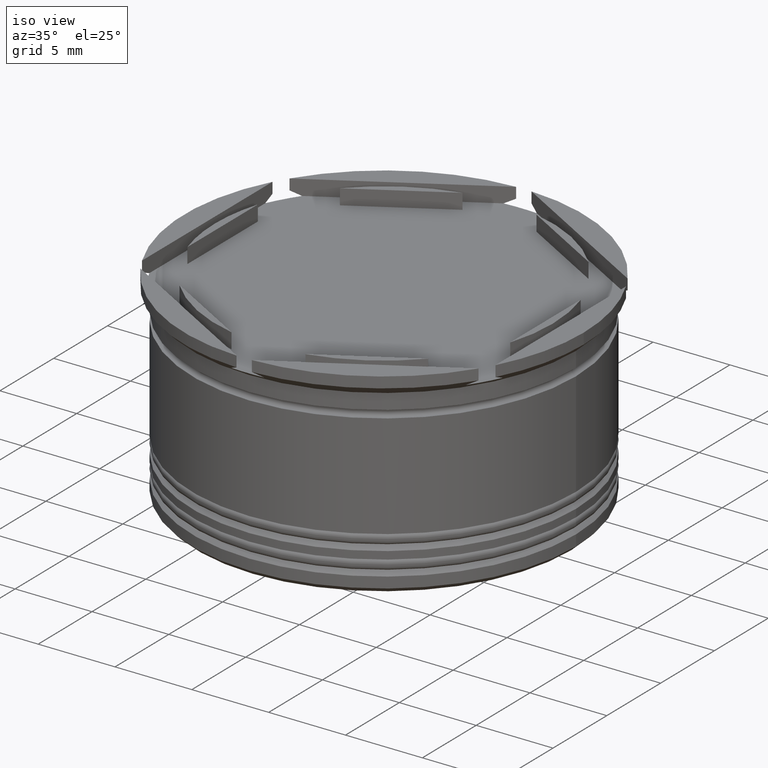
[diagram: clean part render]
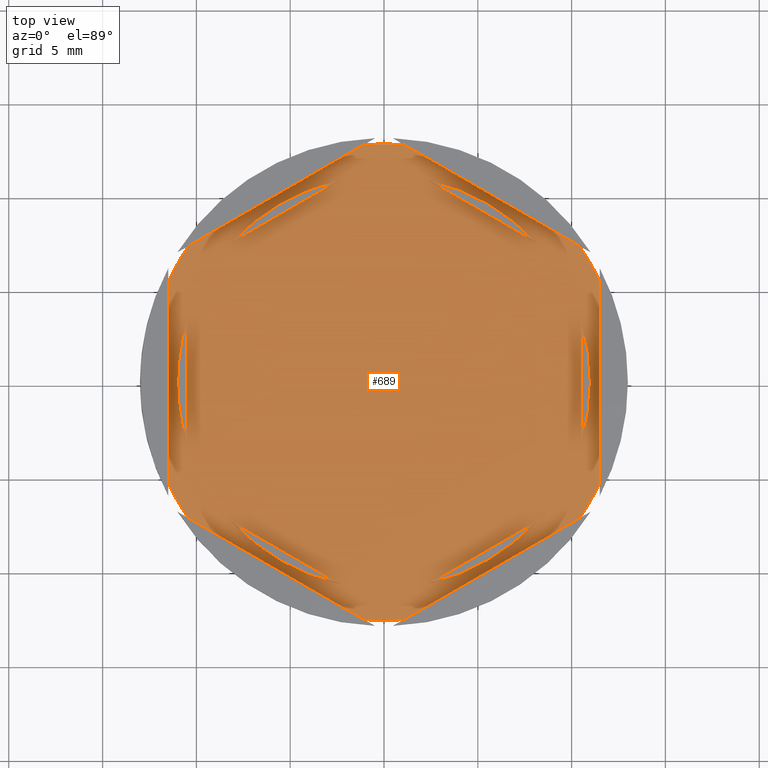
[diagram: tour spotlight — one face highlighted and labeled with its STEP entity id]
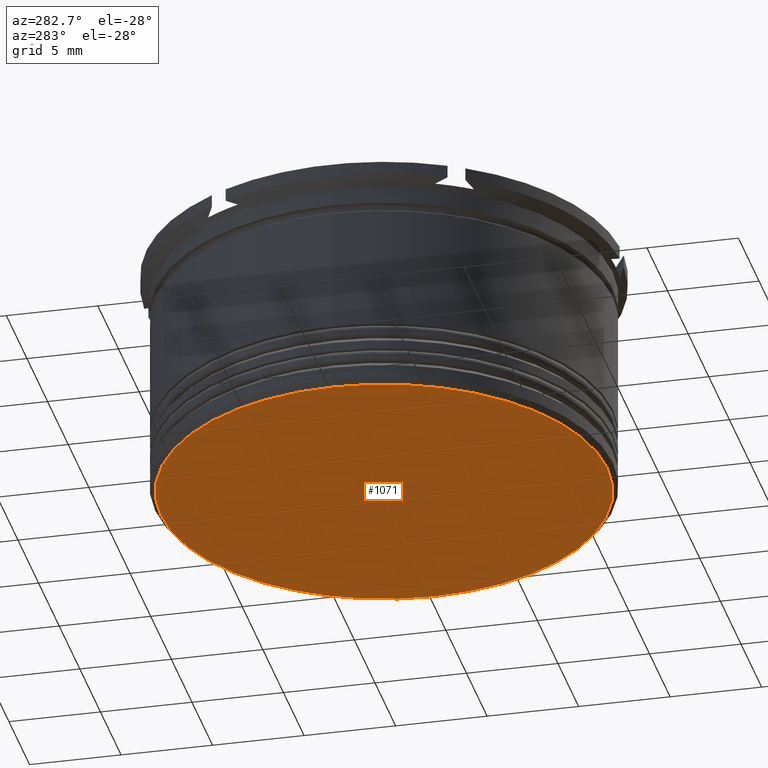
[diagram: tour spotlight — one face highlighted and labeled with its STEP entity id]
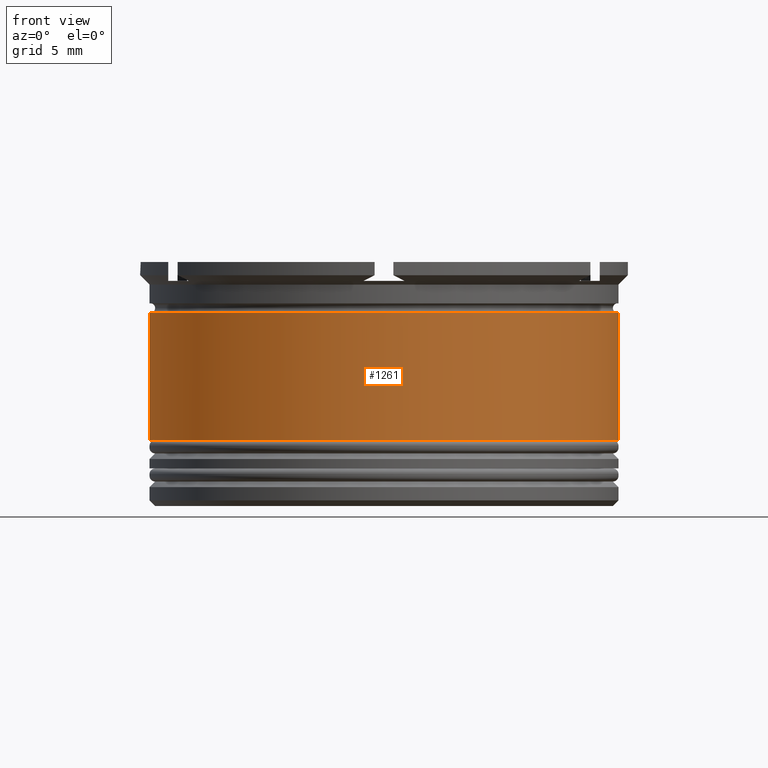
[diagram: tour spotlight — one face highlighted and labeled with its STEP entity id]
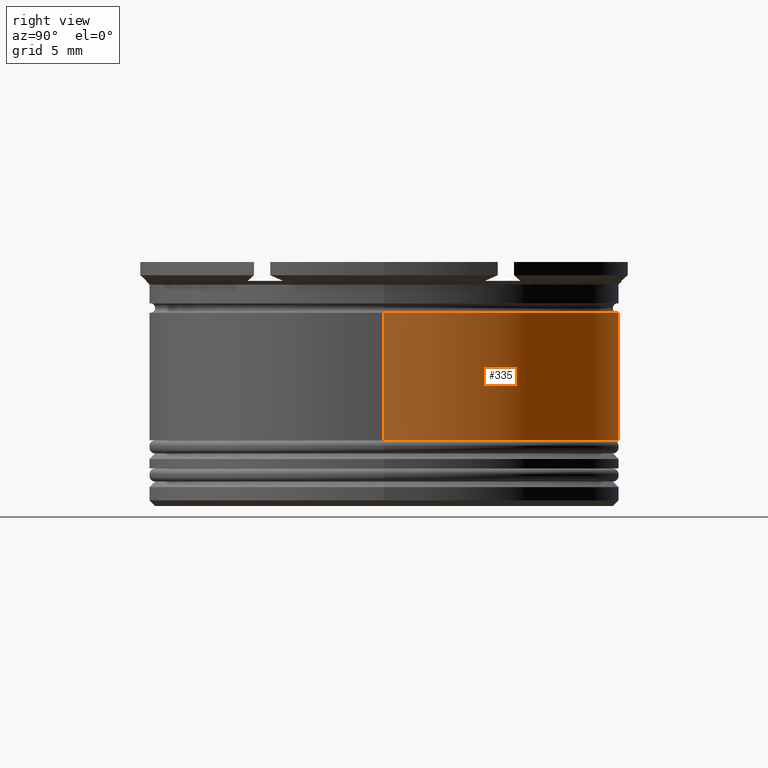
[diagram: tour spotlight — one face highlighted and labeled with its STEP entity id]
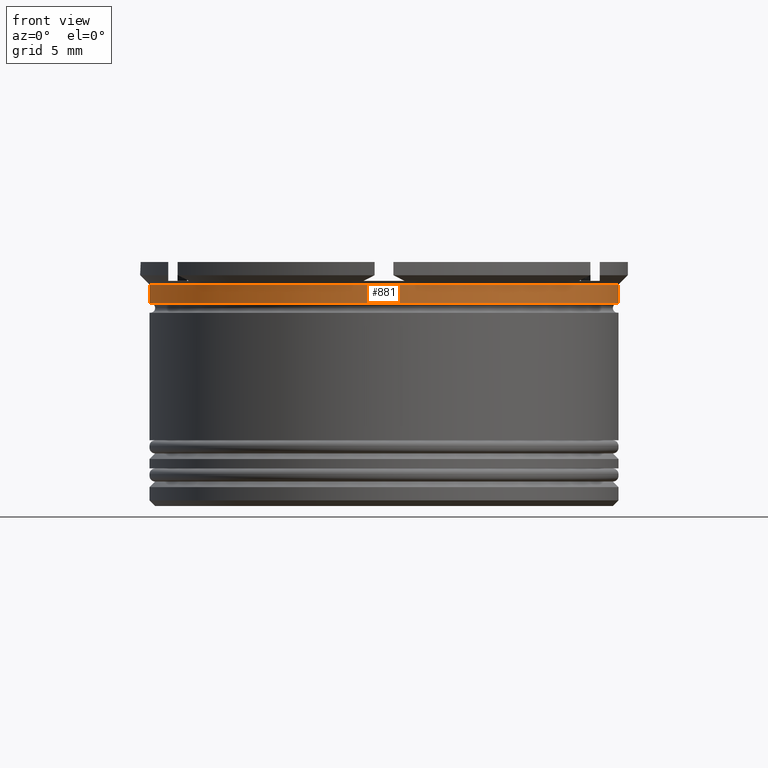
[diagram: tour spotlight — one face highlighted and labeled with its STEP entity id]
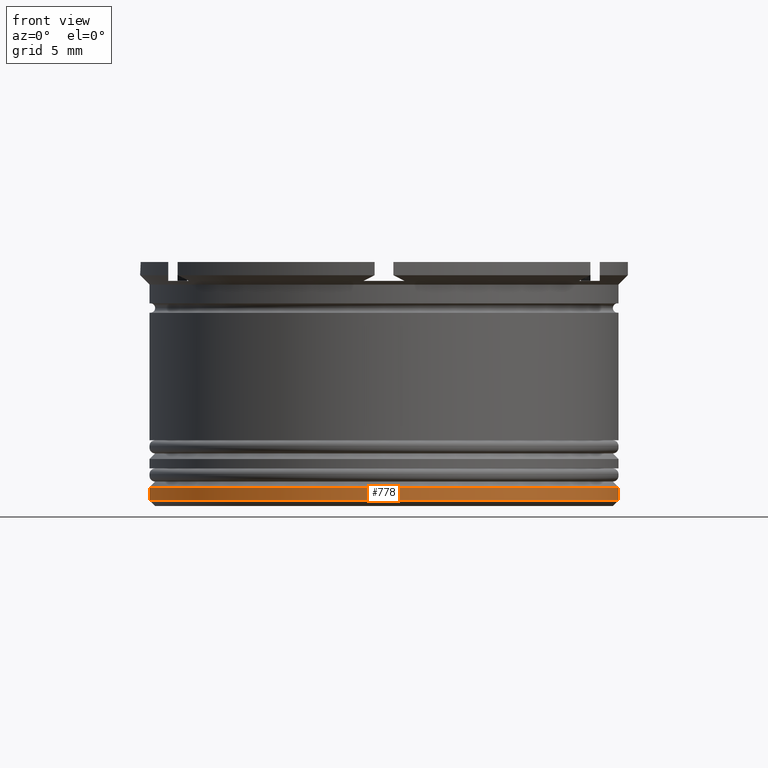
[diagram: tour spotlight — one face highlighted and labeled with its STEP entity id]
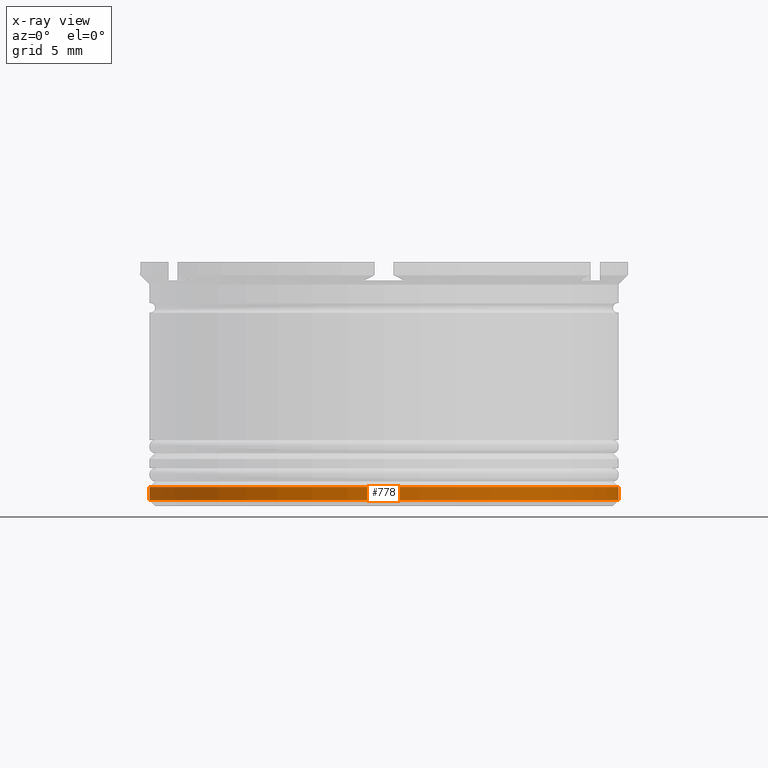
[diagram: x-ray of the same camera — body ghosted, this tour face saturated]
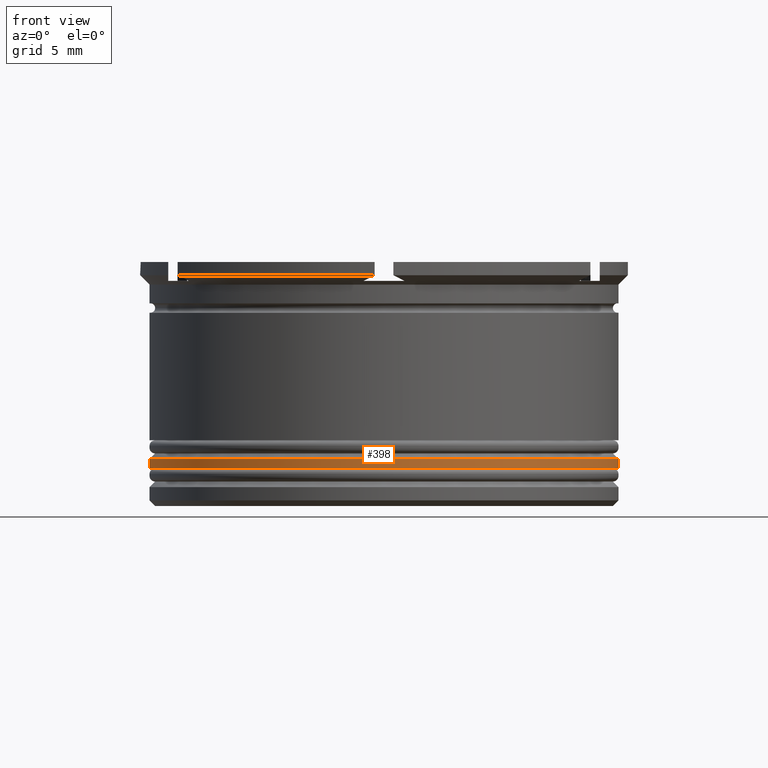
[diagram: tour spotlight — one face highlighted and labeled with its STEP entity id]
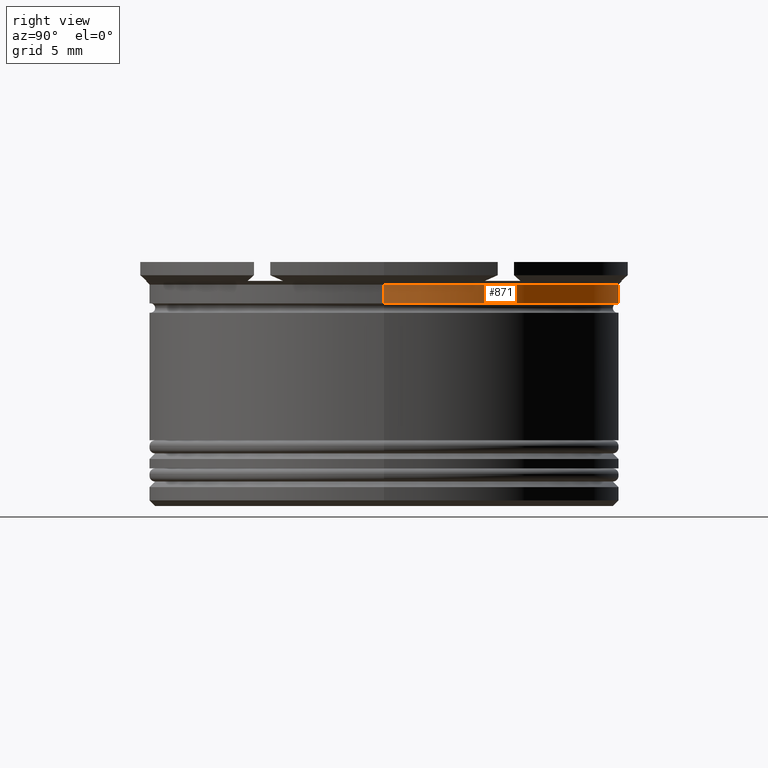
[diagram: tour spotlight — one face highlighted and labeled with its STEP entity id]
A machine part: a face-by-face anatomy tour. The part has 84 B-rep faces; the first image is the clean iso view, then the 8 largest visible faces are spotlighted one at a time (largest first), each with its STEP entity span.

Face 1 — top view, entity #689. In plain terms, the highlighted planar face has unit normal (0, 0, 1).
Definition (entity closure, byte-faithful):
#8 = VECTOR ( 'NONE', #1537, 1000.000000000000000 ) ;
#31 = DIRECTION ( 'NONE',  ( 0.000000000000000000, 0.000000000000000000, 1.000000000000000000 ) ) ;
#39 = FACE_BOUND ( 'NONE', #1391, .T. ) ;
#49 = VERTEX_POINT ( 'NONE', #1398 ) ;
#77 = ORIENTED_EDGE ( 'NONE', *, *, #1833, .T. ) ;
#89 = CIRCLE ( 'NONE', #1053, 12.69999999999999574 ) ;
#94 = DIRECTION ( 'NONE',  ( 1.000000000000000000, 0.000000000000000000, 0.000000000000000000 ) ) ;
#103 = VERTEX_POINT ( 'NONE', #944 ) ;
#130 = CIRCLE ( 'NONE', #1365, 12.69999999999999574 ) ;
#135 = ORIENTED_EDGE ( 'NONE', *, *, #141, .F. ) ;
#138 = CARTESIAN_POINT ( 'NONE',  ( 0.000000000000000000, 0.000000000000000000, -1.000000000000000000 ) ) ;
#139 = ORIENTED_EDGE ( 'NONE', *, *, #753, .T. ) ;
#141 = EDGE_CURVE ( 'NONE', #1091, #1172, #510, .T. ) ;
#143 = EDGE_CURVE ( 'NONE', #1840, #869, #1355, .T. ) ;
#147 = DIRECTION ( 'NONE',  ( 0.000000000000000000, 1.000000000000000000, 0.000000000000000000 ) ) ;
#148 = LINE ( 'NONE', #1045, #163 ) ;
#163 = VECTOR ( 'NONE', #494, 1000.000000000000000 ) ;
#165 = LINE ( 'NONE', #1481, #1207 ) ;
#179 = CARTESIAN_POINT ( 'NONE',  ( 11.50000000000000000, -6.639528095680694797, -1.000000000000000000 ) ) ;
#198 = ORIENTED_EDGE ( 'NONE', *, *, #648, .F. ) ;
#204 = AXIS2_PLACEMENT_3D ( 'NONE', #427, #1351, #2076 ) ;
#256 = ORIENTED_EDGE ( 'NONE', *, *, #1247, .F. ) ;
#258 = CARTESIAN_POINT ( 'NONE',  ( -8.089454172900142126, 7.453907108661097070, -1.000000000000000888 ) ) ;
#273 = DIRECTION ( 'NONE',  ( -0.000000000000000000, -0.000000000000000000, -1.000000000000000000 ) ) ;
#279 = VERTEX_POINT ( 'NONE', #796 ) ;
#304 = VERTEX_POINT ( 'NONE', #814 ) ;
#316 = DIRECTION ( 'NONE',  ( 0.000000000000000000, 0.000000000000000000, 1.000000000000000000 ) ) ;
#320 = EDGE_CURVE ( 'NONE', #1691, #1136, #897, .T. ) ;
#327 = VERTEX_POINT ( 'NONE', #2325 ) ;
#331 = DIRECTION ( 'NONE',  ( 0.000000000000000000, 0.000000000000000000, 1.000000000000000000 ) ) ;
#343 = CARTESIAN_POINT ( 'NONE',  ( 8.089454172900138573, -7.453907108661099734, -1.000000000000000888 ) ) ;
#349 = CARTESIAN_POINT ( 'NONE',  ( -10.49999999999999467, 6.062177826491065069, -1.000000000000000888 ) ) ;
#378 = EDGE_CURVE ( 'NONE', #1136, #1691, #148, .T. ) ;
#390 = DIRECTION ( 'NONE',  ( -0.000000000000000000, -0.000000000000000000, -1.000000000000000000 ) ) ;
#397 = ORIENTED_EDGE ( 'NONE', *, *, #1188, .T. ) ;
#401 = CIRCLE ( 'NONE', #1055, 12.69999999999999574 ) ;
#427 = CARTESIAN_POINT ( 'NONE',  ( 0.000000000000000000, 0.000000000000000000, -1.000000000000000000 ) ) ;
#471 = EDGE_CURVE ( 'NONE', #877, #1779, #2163, .T. ) ;
#483 = LINE ( 'NONE', #1280, #1600 ) ;
#493 = ORIENTED_EDGE ( 'NONE', *, *, #471, .F. ) ;
#494 = DIRECTION ( 'NONE',  ( -2.861551616642209839E-16, -1.000000000000000000, 0.000000000000000000 ) ) ;
#510 = CIRCLE ( 'NONE', #1397, 12.69999999999999574 ) ;
#513 = DIRECTION ( 'NONE',  ( 1.000000000000000000, 0.000000000000000000, 0.000000000000000000 ) ) ;
#527 = EDGE_CURVE ( 'NONE', #904, #103, #89, .T. ) ;
#539 = LINE ( 'NONE', #179, #2242 ) ;
#551 = AXIS2_PLACEMENT_3D ( 'NONE', #138, #331, #513 ) ;
#552 = AXIS2_PLACEMENT_3D ( 'NONE', #1225, #694, #1968 ) ;
#554 = AXIS2_PLACEMENT_3D ( 'NONE', #1510, #31, #1497 ) ;
#575 = EDGE_CURVE ( 'NONE', #1097, #103, #717, .T. ) ;
#585 = FACE_BOUND ( 'NONE', #1119, .T. ) ;
#592 = VECTOR ( 'NONE', #1449, 1000.000000000000000 ) ;
#593 = ORIENTED_EDGE ( 'NONE', *, *, #1326, .F. ) ;
#595 = CARTESIAN_POINT ( 'NONE',  ( 1.083095244168790217, -12.65373086058253627, -1.000000000000000000 ) ) ;
#609 = CARTESIAN_POINT ( 'NONE',  ( 0.000000000000000000, 0.000000000000000000, -1.000000000000000000 ) ) ;
#616 = EDGE_CURVE ( 'NONE', #304, #279, #1161, .T. ) ;
#619 = FACE_BOUND ( 'NONE', #921, .T. ) ;
#624 = VERTEX_POINT ( 'NONE', #1711 ) ;
#632 = DIRECTION ( 'NONE',  ( -0.000000000000000000, -0.000000000000000000, -1.000000000000000000 ) ) ;
#636 = DIRECTION ( 'NONE',  ( 0.000000000000000000, 0.000000000000000000, 1.000000000000000000 ) ) ;
#640 = VERTEX_POINT ( 'NONE', #766 ) ;
#648 = EDGE_CURVE ( 'NONE', #2068, #1616, #401, .T. ) ;
#651 = LINE ( 'NONE', #1339, #1864 ) ;
#680 = DIRECTION ( 'NONE',  ( 1.000000000000000000, 0.000000000000000000, 0.000000000000000000 ) ) ;
#681 = ORIENTED_EDGE ( 'NONE', *, *, #575, .T. ) ;
#689 = ADVANCED_FACE ( 'NONE', ( #39, #1342, #585, #1153, #802, #619, #1925 ), #776, .T. ) ;
#694 = DIRECTION ( 'NONE',  ( 0.000000000000000000, 0.000000000000000000, 1.000000000000000000 ) ) ;
#698 = AXIS2_PLACEMENT_3D ( 'NONE', #1453, #1106, #1526 ) ;
#714 = CARTESIAN_POINT ( 'NONE',  ( 10.49999999999999289, -3.278719262151010394, -1.000000000000000888 ) ) ;
#716 = CARTESIAN_POINT ( 'NONE',  ( -2.410545827099856098, 10.73262637081210613, -1.000000000000000888 ) ) ;
#717 = LINE ( 'NONE', #2354, #592 ) ;
#726 = LINE ( 'NONE', #2028, #2053 ) ;
#752 = VERTEX_POINT ( 'NONE', #258 ) ;
#753 = EDGE_CURVE ( 'NONE', #1091, #869, #996, .T. ) ;
#766 = CARTESIAN_POINT ( 'NONE',  ( 2.410545827099852989, -10.73262637081210613, -1.000000000000000888 ) ) ;
#769 = DIRECTION ( 'NONE',  ( 1.000000000000000000, 0.000000000000000000, 0.000000000000000000 ) ) ;
#776 = PLANE ( 'NONE',  #554 ) ;
#796 = CARTESIAN_POINT ( 'NONE',  ( -10.99999999999999822, 0.000000000000000000, -1.000000000000000000 ) ) ;
#799 = EDGE_CURVE ( 'NONE', #279, #1538, #1624, .T. ) ;
#801 = ORIENTED_EDGE ( 'NONE', *, *, #854, .T. ) ;
#802 = FACE_BOUND ( 'NONE', #2144, .T. ) ;
#811 = CARTESIAN_POINT ( 'NONE',  ( -3.394223061414856671E-17, -13.27905619136138959, -1.000000000000000000 ) ) ;
#814 = CARTESIAN_POINT ( 'NONE',  ( -10.49999999999999467, 3.278719262151007285, -1.000000000000000888 ) ) ;
#817 = ORIENTED_EDGE ( 'NONE', *, *, #2281, .T. ) ;
#845 = ORIENTED_EDGE ( 'NONE', *, *, #1498, .F. ) ;
#854 = EDGE_CURVE ( 'NONE', #2068, #1172, #2309, .T. ) ;
#856 = CARTESIAN_POINT ( 'NONE',  ( 11.50000000000000000, -5.388877434122982812, -1.000000000000000000 ) ) ;
#859 = CIRCLE ( 'NONE', #204, 12.69999999999999574 ) ;
#866 = CIRCLE ( 'NONE', #2095, 10.99999999999999822 ) ;
#869 = VERTEX_POINT ( 'NONE', #2126 ) ;
#872 = ORIENTED_EDGE ( 'NONE', *, *, #527, .F. ) ;
#877 = VERTEX_POINT ( 'NONE', #2335 ) ;
#897 = CIRCLE ( 'NONE', #2016, 10.99999999999999822 ) ;
#903 = VECTOR ( 'NONE', #147, 1000.000000000000000 ) ;
#904 = VERTEX_POINT ( 'NONE', #1098 ) ;
#906 = CARTESIAN_POINT ( 'NONE',  ( -10.41690475583120445, -7.264853426459555230, -1.000000000000000000 ) ) ;
#921 = EDGE_LOOP ( 'NONE', ( #2278, #593 ) ) ;
#932 = CARTESIAN_POINT ( 'NONE',  ( -2.410545827099869864, -10.73262637081210435, -1.000000000000000888 ) ) ;
#944 = CARTESIAN_POINT ( 'NONE',  ( -10.41690475583121156, 7.264853426459544572, -1.000000000000000000 ) ) ;
#948 = ORIENTED_EDGE ( 'NONE', *, *, #378, .F. ) ;
#959 = ORIENTED_EDGE ( 'NONE', *, *, #1737, .F. ) ;
#996 = LINE ( 'NONE', #811, #1751 ) ;
#1045 = CARTESIAN_POINT ( 'NONE',  ( 10.49999999999999289, -6.062177826491071286, -1.000000000000000888 ) ) ;
#1053 = AXIS2_PLACEMENT_3D ( 'NONE', #1639, #1843, #2184 ) ;
#1055 = AXIS2_PLACEMENT_3D ( 'NONE', #609, #632, #1536 ) ;
#1063 = EDGE_LOOP ( 'NONE', ( #493, #959 ) ) ;
#1075 = LINE ( 'NONE', #349, #903 ) ;
#1076 = CARTESIAN_POINT ( 'NONE',  ( 0.000000000000000000, 0.000000000000000000, -1.000000000000000000 ) ) ;
#1081 = CIRCLE ( 'NONE', #698, 10.99999999999999822 ) ;
#1091 = VERTEX_POINT ( 'NONE', #595 ) ;
#1094 = CARTESIAN_POINT ( 'NONE',  ( 2.410545827099848548, 10.73262637081210613, -1.000000000000000888 ) ) ;
#1097 = VERTEX_POINT ( 'NONE', #1569 ) ;
#1098 = CARTESIAN_POINT ( 'NONE',  ( -11.50000000000000000, 5.388877434122982812, -1.000000000000000000 ) ) ;
#1100 = EDGE_CURVE ( 'NONE', #1146, #327, #651, .T. ) ;
#1104 = DIRECTION ( 'NONE',  ( -0.000000000000000000, -0.000000000000000000, -1.000000000000000000 ) ) ;
#1106 = DIRECTION ( 'NONE',  ( 0.000000000000000000, 0.000000000000000000, 1.000000000000000000 ) ) ;
#1119 = EDGE_LOOP ( 'NONE', ( #256, #1185 ) ) ;
#1136 = VERTEX_POINT ( 'NONE', #2188 ) ;
#1146 = VERTEX_POINT ( 'NONE', #1094 ) ;
#1153 = FACE_BOUND ( 'NONE', #1063, .T. ) ;
#1161 = CIRCLE ( 'NONE', #1472, 10.99999999999999822 ) ;
#1172 = VERTEX_POINT ( 'NONE', #1683 ) ;
#1185 = ORIENTED_EDGE ( 'NONE', *, *, #2063, .F. ) ;
#1188 = EDGE_CURVE ( 'NONE', #1840, #1308, #539, .T. ) ;
#1194 = ORIENTED_EDGE ( 'NONE', *, *, #1100, .F. ) ;
#1207 = VECTOR ( 'NONE', #2219, 1000.000000000000000 ) ;
#1215 = VERTEX_POINT ( 'NONE', #343 ) ;
#1225 = CARTESIAN_POINT ( 'NONE',  ( 0.000000000000000000, 0.000000000000000000, -1.000000000000000000 ) ) ;
#1237 = AXIS2_PLACEMENT_3D ( 'NONE', #2371, #390, #769 ) ;
#1243 = VECTOR ( 'NONE', #1416, 1000.000000000000000 ) ;
#1244 = CARTESIAN_POINT ( 'NONE',  ( 0.000000000000000000, 0.000000000000000000, -1.000000000000000000 ) ) ;
#1247 = EDGE_CURVE ( 'NONE', #640, #1215, #1081, .T. ) ;
#1268 = DIRECTION ( 'NONE',  ( 0.000000000000000000, 0.000000000000000000, 1.000000000000000000 ) ) ;
#1277 = EDGE_LOOP ( 'NONE', ( #2207, #948 ) ) ;
#1280 = CARTESIAN_POINT ( 'NONE',  ( -11.50000000000000000, 6.639528095680691244, -1.000000000000000000 ) ) ;
#1308 = VERTEX_POINT ( 'NONE', #1771 ) ;
#1326 = EDGE_CURVE ( 'NONE', #752, #2244, #2272, .T. ) ;
#1339 = CARTESIAN_POINT ( 'NONE',  ( 10.49999999999999645, 6.062177826491066845, -1.000000000000000888 ) ) ;
#1342 = FACE_BOUND ( 'NONE', #1277, .T. ) ;
#1351 = DIRECTION ( 'NONE',  ( -0.000000000000000000, -0.000000000000000000, -1.000000000000000000 ) ) ;
#1355 = CIRCLE ( 'NONE', #1237, 12.69999999999999574 ) ;
#1361 = DIRECTION ( 'NONE',  ( 1.000000000000000000, 0.000000000000000000, 0.000000000000000000 ) ) ;
#1365 = AXIS2_PLACEMENT_3D ( 'NONE', #1929, #273, #2197 ) ;
#1391 = EDGE_LOOP ( 'NONE', ( #2119, #1194 ) ) ;
#1397 = AXIS2_PLACEMENT_3D ( 'NONE', #1461, #1104, #1856 ) ;
#1398 = CARTESIAN_POINT ( 'NONE',  ( 1.083095244168780669, 12.65373086058253449, -1.000000000000000000 ) ) ;
#1416 = DIRECTION ( 'NONE',  ( 0.8660254037844388186, -0.4999999999999997224, 0.000000000000000000 ) ) ;
#1449 = DIRECTION ( 'NONE',  ( -0.8660254037844387076, -0.4999999999999998890, 0.000000000000000000 ) ) ;
#1453 = CARTESIAN_POINT ( 'NONE',  ( 0.000000000000000000, 0.000000000000000000, -1.000000000000000000 ) ) ;
#1461 = CARTESIAN_POINT ( 'NONE',  ( 0.000000000000000000, 0.000000000000000000, -1.000000000000000000 ) ) ;
#1470 = ORIENTED_EDGE ( 'NONE', *, *, #2235, .F. ) ;
#1472 = AXIS2_PLACEMENT_3D ( 'NONE', #1076, #1268, #2007 ) ;
#1481 = CARTESIAN_POINT ( 'NONE',  ( -3.469446951953614189E-15, -12.12435565298213724, -1.000000000000000888 ) ) ;
#1482 = DIRECTION ( 'NONE',  ( 0.000000000000000000, 1.000000000000000000, 0.000000000000000000 ) ) ;
#1497 = DIRECTION ( 'NONE',  ( 1.000000000000000000, 0.000000000000000000, -0.000000000000000000 ) ) ;
#1498 = EDGE_CURVE ( 'NONE', #1097, #49, #859, .T. ) ;
#1510 = CARTESIAN_POINT ( 'NONE',  ( 0.000000000000000000, 0.000000000000000000, -1.000000000000000000 ) ) ;
#1511 = CIRCLE ( 'NONE', #552, 10.99999999999999822 ) ;
#1526 = DIRECTION ( 'NONE',  ( 1.000000000000000000, 0.000000000000000000, 0.000000000000000000 ) ) ;
#1536 = DIRECTION ( 'NONE',  ( 1.000000000000000000, -7.105427357601001859E-15, 0.000000000000000000 ) ) ;
#1537 = DIRECTION ( 'NONE',  ( 0.8660254037844385966, 0.5000000000000001110, -0.000000000000000000 ) ) ;
#1538 = VERTEX_POINT ( 'NONE', #1719 ) ;
#1540 = CARTESIAN_POINT ( 'NONE',  ( 0.000000000000000000, 0.000000000000000000, -1.000000000000000000 ) ) ;
#1569 = CARTESIAN_POINT ( 'NONE',  ( -1.083095244168782445, 12.65373086058253627, -1.000000000000000000 ) ) ;
#1600 = VECTOR ( 'NONE', #2379, 1000.000000000000000 ) ;
#1607 = DIRECTION ( 'NONE',  ( -0.8660254037844387076, 0.4999999999999997780, 0.000000000000000000 ) ) ;
#1612 = CARTESIAN_POINT ( 'NONE',  ( -11.50000000000000000, -6.639528095680698350, -1.000000000000000000 ) ) ;
#1616 = VERTEX_POINT ( 'NONE', #1961 ) ;
#1624 = CIRCLE ( 'NONE', #1677, 10.99999999999999822 ) ;
#1639 = CARTESIAN_POINT ( 'NONE',  ( 0.000000000000000000, 0.000000000000000000, -1.000000000000000000 ) ) ;
#1657 = DIRECTION ( 'NONE',  ( -0.8660254037844385966, 0.5000000000000002220, 0.000000000000000000 ) ) ;
#1677 = AXIS2_PLACEMENT_3D ( 'NONE', #1244, #316, #680 ) ;
#1683 = CARTESIAN_POINT ( 'NONE',  ( -1.083095244168789328, -12.65373086058253627, -1.000000000000000000 ) ) ;
#1691 = VERTEX_POINT ( 'NONE', #714 ) ;
#1711 = CARTESIAN_POINT ( 'NONE',  ( 10.41690475583120801, 7.264853426459545460, -1.000000000000000000 ) ) ;
#1719 = CARTESIAN_POINT ( 'NONE',  ( -10.49999999999999467, -3.278719262151007285, -1.000000000000000888 ) ) ;
#1737 = EDGE_CURVE ( 'NONE', #1779, #877, #726, .T. ) ;
#1751 = VECTOR ( 'NONE', #2103, 1000.000000000000000 ) ;
#1771 = CARTESIAN_POINT ( 'NONE',  ( 11.50000000000000000, 5.388877434122982812, -1.000000000000000000 ) ) ;
#1778 = LINE ( 'NONE', #2137, #2092 ) ;
#1779 = VERTEX_POINT ( 'NONE', #932 ) ;
#1833 = EDGE_CURVE ( 'NONE', #624, #49, #1778, .T. ) ;
#1840 = VERTEX_POINT ( 'NONE', #856 ) ;
#1843 = DIRECTION ( 'NONE',  ( -0.000000000000000000, -0.000000000000000000, -1.000000000000000000 ) ) ;
#1856 = DIRECTION ( 'NONE',  ( 1.000000000000000000, 0.000000000000000000, 0.000000000000000000 ) ) ;
#1864 = VECTOR ( 'NONE', #2121, 1000.000000000000000 ) ;
#1884 = ORIENTED_EDGE ( 'NONE', *, *, #799, .F. ) ;
#1897 = ORIENTED_EDGE ( 'NONE', *, *, #143, .F. ) ;
#1920 = EDGE_CURVE ( 'NONE', #327, #1146, #1511, .T. ) ;
#1925 = FACE_OUTER_BOUND ( 'NONE', #2252, .T. ) ;
#1929 = CARTESIAN_POINT ( 'NONE',  ( 0.000000000000000000, 0.000000000000000000, -1.000000000000000000 ) ) ;
#1961 = CARTESIAN_POINT ( 'NONE',  ( -11.50000000000000000, -5.388877434122982812, -1.000000000000000000 ) ) ;
#1968 = DIRECTION ( 'NONE',  ( 1.000000000000000000, 0.000000000000000000, 0.000000000000000000 ) ) ;
#2007 = DIRECTION ( 'NONE',  ( 1.000000000000000000, 0.000000000000000000, 0.000000000000000000 ) ) ;
#2016 = AXIS2_PLACEMENT_3D ( 'NONE', #2292, #636, #94 ) ;
#2028 = CARTESIAN_POINT ( 'NONE',  ( -10.49999999999999467, -6.062177826491068622, -1.000000000000000888 ) ) ;
#2053 = VECTOR ( 'NONE', #1657, 999.9999999999998863 ) ;
#2063 = EDGE_CURVE ( 'NONE', #1215, #640, #165, .T. ) ;
#2068 = VERTEX_POINT ( 'NONE', #906 ) ;
#2076 = DIRECTION ( 'NONE',  ( 1.000000000000000000, 6.217248937900877415E-15, 0.000000000000000000 ) ) ;
#2083 = ORIENTED_EDGE ( 'NONE', *, *, #2314, .F. ) ;
#2092 = VECTOR ( 'NONE', #1607, 1000.000000000000227 ) ;
#2094 = CARTESIAN_POINT ( 'NONE',  ( -1.734723475976807094E-15, 12.12435565298213369, -1.000000000000000888 ) ) ;
#2095 = AXIS2_PLACEMENT_3D ( 'NONE', #1540, #2275, #1361 ) ;
#2103 = DIRECTION ( 'NONE',  ( 0.8660254037844387076, 0.4999999999999998890, 0.000000000000000000 ) ) ;
#2119 = ORIENTED_EDGE ( 'NONE', *, *, #1920, .F. ) ;
#2121 = DIRECTION ( 'NONE',  ( 0.8660254037844387076, -0.4999999999999998335, 0.000000000000000000 ) ) ;
#2126 = CARTESIAN_POINT ( 'NONE',  ( 10.41690475583120623, -7.264853426459551677, -1.000000000000000000 ) ) ;
#2137 = CARTESIAN_POINT ( 'NONE',  ( 11.50000000000000000, 6.639528095680693021, -1.000000000000000000 ) ) ;
#2144 = EDGE_LOOP ( 'NONE', ( #2168, #2083, #1884 ) ) ;
#2163 = CIRCLE ( 'NONE', #551, 10.99999999999999822 ) ;
#2168 = ORIENTED_EDGE ( 'NONE', *, *, #616, .F. ) ;
#2184 = DIRECTION ( 'NONE',  ( 1.000000000000000000, 0.000000000000000000, 0.000000000000000000 ) ) ;
#2188 = CARTESIAN_POINT ( 'NONE',  ( 10.49999999999999645, 3.278719262151004177, -1.000000000000000888 ) ) ;
#2197 = DIRECTION ( 'NONE',  ( 1.000000000000000000, -8.881784197001252323E-16, 0.000000000000000000 ) ) ;
#2207 = ORIENTED_EDGE ( 'NONE', *, *, #320, .F. ) ;
#2219 = DIRECTION ( 'NONE',  ( -0.8660254037844387076, -0.4999999999999998335, 0.000000000000000000 ) ) ;
#2225 = EDGE_CURVE ( 'NONE', #2244, #752, #866, .T. ) ;
#2235 = EDGE_CURVE ( 'NONE', #624, #1308, #130, .T. ) ;
#2242 = VECTOR ( 'NONE', #1482, 1000.000000000000000 ) ;
#2244 = VERTEX_POINT ( 'NONE', #716 ) ;
#2252 = EDGE_LOOP ( 'NONE', ( #397, #1470, #77, #845, #681, #872, #817, #198, #801, #135, #139, #1897 ) ) ;
#2272 = LINE ( 'NONE', #2094, #8 ) ;
#2275 = DIRECTION ( 'NONE',  ( 0.000000000000000000, 0.000000000000000000, 1.000000000000000000 ) ) ;
#2278 = ORIENTED_EDGE ( 'NONE', *, *, #2225, .F. ) ;
#2281 = EDGE_CURVE ( 'NONE', #904, #1616, #483, .T. ) ;
#2292 = CARTESIAN_POINT ( 'NONE',  ( 0.000000000000000000, 0.000000000000000000, -1.000000000000000000 ) ) ;
#2309 = LINE ( 'NONE', #1612, #1243 ) ;
#2314 = EDGE_CURVE ( 'NONE', #1538, #304, #1075, .T. ) ;
#2325 = CARTESIAN_POINT ( 'NONE',  ( 8.089454172900142126, 7.453907108661096181, -1.000000000000000888 ) ) ;
#2335 = CARTESIAN_POINT ( 'NONE',  ( -8.089454172900135021, -7.453907108661107728, -1.000000000000000888 ) ) ;
#2354 = CARTESIAN_POINT ( 'NONE',  ( 0.000000000000000000, 13.27905619136138604, -1.000000000000000000 ) ) ;
#2371 = CARTESIAN_POINT ( 'NONE',  ( 0.000000000000000000, 0.000000000000000000, -1.000000000000000000 ) ) ;
#2379 = DIRECTION ( 'NONE',  ( 0.000000000000000000, -1.000000000000000000, 0.000000000000000000 ) ) ;

Face 2 — auxiliary view, entity #1071. In plain terms, the highlighted planar face has unit normal (0, 0, -1).
Definition (entity closure, byte-faithful):
#90 = CARTESIAN_POINT ( 'NONE',  ( 0.000000000000000000, 0.000000000000000000, -13.00000000000000178 ) ) ;
#152 = ORIENTED_EDGE ( 'NONE', *, *, #807, .T. ) ;
#221 = FACE_OUTER_BOUND ( 'NONE', #540, .T. ) ;
#275 = DIRECTION ( 'NONE',  ( -1.000000000000000000, 0.000000000000000000, -0.000000000000000000 ) ) ;
#387 = CARTESIAN_POINT ( 'NONE',  ( 12.20000000000000284, 0.000000000000000000, -13.00000000000000178 ) ) ;
#478 = CIRCLE ( 'NONE', #941, 12.20000000000000284 ) ;
#515 = CIRCLE ( 'NONE', #1320, 12.20000000000000284 ) ;
#540 = EDGE_LOOP ( 'NONE', ( #1958, #152 ) ) ;
#567 = VERTEX_POINT ( 'NONE', #387 ) ;
#584 = CARTESIAN_POINT ( 'NONE',  ( -12.20000000000000284, 1.512438796946981486E-15, -13.00000000000000178 ) ) ;
#807 = EDGE_CURVE ( 'NONE', #1031, #567, #515, .T. ) ;
#847 = CARTESIAN_POINT ( 'NONE',  ( 0.000000000000000000, 0.000000000000000000, -13.00000000000000178 ) ) ;
#850 = DIRECTION ( 'NONE',  ( 0.000000000000000000, 0.000000000000000000, -1.000000000000000000 ) ) ;
#941 = AXIS2_PLACEMENT_3D ( 'NONE', #847, #1978, #2340 ) ;
#960 = CARTESIAN_POINT ( 'NONE',  ( 0.000000000000000000, 12.50000000000000000, -13.00000000000000178 ) ) ;
#1031 = VERTEX_POINT ( 'NONE', #584 ) ;
#1071 = ADVANCED_FACE ( 'NONE', ( #221 ), #2246, .T. ) ;
#1320 = AXIS2_PLACEMENT_3D ( 'NONE', #90, #850, #1742 ) ;
#1329 = DIRECTION ( 'NONE',  ( 0.000000000000000000, 0.000000000000000000, -1.000000000000000000 ) ) ;
#1354 = AXIS2_PLACEMENT_3D ( 'NONE', #960, #1329, #275 ) ;
#1742 = DIRECTION ( 'NONE',  ( -1.000000000000000000, 0.000000000000000000, 0.000000000000000000 ) ) ;
#1932 = EDGE_CURVE ( 'NONE', #567, #1031, #478, .T. ) ;
#1958 = ORIENTED_EDGE ( 'NONE', *, *, #1932, .T. ) ;
#1978 = DIRECTION ( 'NONE',  ( 0.000000000000000000, 0.000000000000000000, -1.000000000000000000 ) ) ;
#2246 = PLANE ( 'NONE',  #1354 ) ;
#2340 = DIRECTION ( 'NONE',  ( -1.000000000000000000, 0.000000000000000000, 0.000000000000000000 ) ) ;

Face 3 — front view, entity #1261. In plain terms, the highlighted cylindrical surface (partial cylindrical patch) has radius 12.5 mm, axis along (-0, -0, 1).
Definition (entity closure, byte-faithful):
#18 = VERTEX_POINT ( 'NONE', #2306 ) ;
#25 = CYLINDRICAL_SURFACE ( 'NONE', #280, 12.49999999999999822 ) ;
#76 = DIRECTION ( 'NONE',  ( -0.000000000000000000, -0.000000000000000000, 1.000000000000000000 ) ) ;
#111 = CARTESIAN_POINT ( 'NONE',  ( 0.000000000000000000, 0.000000000000000000, -2.700000000000000178 ) ) ;
#205 = VECTOR ( 'NONE', #1066, 1000.000000000000000 ) ;
#280 = AXIS2_PLACEMENT_3D ( 'NONE', #2362, #711, #1444 ) ;
#407 = CARTESIAN_POINT ( 'NONE',  ( -12.49999999999999645, 1.530808498934191324E-15, -2.700000000000000178 ) ) ;
#457 = EDGE_CURVE ( 'NONE', #1629, #639, #1058, .T. ) ;
#498 = VERTEX_POINT ( 'NONE', #1124 ) ;
#560 = DIRECTION ( 'NONE',  ( 1.000000000000000000, 0.000000000000000000, 0.000000000000000000 ) ) ;
#588 = VECTOR ( 'NONE', #76, 1000.000000000000000 ) ;
#627 = AXIS2_PLACEMENT_3D ( 'NONE', #111, #1744, #1181 ) ;
#639 = VERTEX_POINT ( 'NONE', #407 ) ;
#711 = DIRECTION ( 'NONE',  ( -0.000000000000000000, -0.000000000000000000, 1.000000000000000000 ) ) ;
#746 = AXIS2_PLACEMENT_3D ( 'NONE', #2212, #2194, #560 ) ;
#803 = CARTESIAN_POINT ( 'NONE',  ( 12.49999999999999822, 0.000000000000000000, 0.000000000000000000 ) ) ;
#939 = CIRCLE ( 'NONE', #627, 12.49999999999999645 ) ;
#968 = ORIENTED_EDGE ( 'NONE', *, *, #1786, .T. ) ;
#1027 = CARTESIAN_POINT ( 'NONE',  ( -12.49999999999999822, 1.530808498934191324E-15, 0.000000000000000000 ) ) ;
#1058 = LINE ( 'NONE', #1027, #205 ) ;
#1066 = DIRECTION ( 'NONE',  ( -0.000000000000000000, -0.000000000000000000, 1.000000000000000000 ) ) ;
#1124 = CARTESIAN_POINT ( 'NONE',  ( 12.50000000000000000, 0.000000000000000000, -9.500000000000001776 ) ) ;
#1181 = DIRECTION ( 'NONE',  ( 1.000000000000000000, 0.000000000000000000, 0.000000000000000000 ) ) ;
#1227 = CARTESIAN_POINT ( 'NONE',  ( -12.50000000000000178, 1.530808498934191719E-15, -9.500000000000001776 ) ) ;
#1261 = ADVANCED_FACE ( 'NONE', ( #2263 ), #25, .T. ) ;
#1293 = EDGE_CURVE ( 'NONE', #498, #18, #2310, .T. ) ;
#1319 = ORIENTED_EDGE ( 'NONE', *, *, #1369, .F. ) ;
#1369 = EDGE_CURVE ( 'NONE', #639, #18, #939, .T. ) ;
#1419 = ORIENTED_EDGE ( 'NONE', *, *, #457, .F. ) ;
#1444 = DIRECTION ( 'NONE',  ( 1.000000000000000000, 0.000000000000000000, 0.000000000000000000 ) ) ;
#1629 = VERTEX_POINT ( 'NONE', #1227 ) ;
#1744 = DIRECTION ( 'NONE',  ( -0.000000000000000000, -0.000000000000000000, 1.000000000000000000 ) ) ;
#1786 = EDGE_CURVE ( 'NONE', #1629, #498, #2326, .T. ) ;
#2116 = EDGE_LOOP ( 'NONE', ( #1419, #968, #2307, #1319 ) ) ;
#2194 = DIRECTION ( 'NONE',  ( -0.000000000000000000, -0.000000000000000000, 1.000000000000000000 ) ) ;
#2212 = CARTESIAN_POINT ( 'NONE',  ( 0.000000000000000000, 0.000000000000000000, -9.500000000000001776 ) ) ;
#2263 = FACE_OUTER_BOUND ( 'NONE', #2116, .T. ) ;
#2306 = CARTESIAN_POINT ( 'NONE',  ( 12.49999999999999645, 0.000000000000000000, -2.700000000000000178 ) ) ;
#2307 = ORIENTED_EDGE ( 'NONE', *, *, #1293, .T. ) ;
#2310 = LINE ( 'NONE', #803, #588 ) ;
#2326 = CIRCLE ( 'NONE', #746, 12.50000000000000000 ) ;
#2362 = CARTESIAN_POINT ( 'NONE',  ( 0.000000000000000000, 0.000000000000000000, 0.000000000000000000 ) ) ;

Face 4 — right view, entity #335. In plain terms, the highlighted cylindrical surface (partial cylindrical patch) has radius 12.5 mm, axis along (-0, -0, 1).
Definition (entity closure, byte-faithful):
#18 = VERTEX_POINT ( 'NONE', #2306 ) ;
#76 = DIRECTION ( 'NONE',  ( -0.000000000000000000, -0.000000000000000000, 1.000000000000000000 ) ) ;
#205 = VECTOR ( 'NONE', #1066, 1000.000000000000000 ) ;
#230 = ORIENTED_EDGE ( 'NONE', *, *, #1295, .T. ) ;
#332 = ORIENTED_EDGE ( 'NONE', *, *, #457, .T. ) ;
#335 = ADVANCED_FACE ( 'NONE', ( #673 ), #1213, .T. ) ;
#407 = CARTESIAN_POINT ( 'NONE',  ( -12.49999999999999645, 1.530808498934191324E-15, -2.700000000000000178 ) ) ;
#433 = CIRCLE ( 'NONE', #1743, 12.50000000000000000 ) ;
#438 = EDGE_LOOP ( 'NONE', ( #230, #332, #2305, #1782 ) ) ;
#457 = EDGE_CURVE ( 'NONE', #1629, #639, #1058, .T. ) ;
#498 = VERTEX_POINT ( 'NONE', #1124 ) ;
#588 = VECTOR ( 'NONE', #76, 1000.000000000000000 ) ;
#639 = VERTEX_POINT ( 'NONE', #407 ) ;
#673 = FACE_OUTER_BOUND ( 'NONE', #438, .T. ) ;
#803 = CARTESIAN_POINT ( 'NONE',  ( 12.49999999999999822, 0.000000000000000000, 0.000000000000000000 ) ) ;
#885 = DIRECTION ( 'NONE',  ( -0.000000000000000000, -0.000000000000000000, 1.000000000000000000 ) ) ;
#1025 = CARTESIAN_POINT ( 'NONE',  ( 0.000000000000000000, 0.000000000000000000, -9.500000000000001776 ) ) ;
#1027 = CARTESIAN_POINT ( 'NONE',  ( -12.49999999999999822, 1.530808498934191324E-15, 0.000000000000000000 ) ) ;
#1042 = CARTESIAN_POINT ( 'NONE',  ( 0.000000000000000000, 0.000000000000000000, -2.700000000000000178 ) ) ;
#1058 = LINE ( 'NONE', #1027, #205 ) ;
#1066 = DIRECTION ( 'NONE',  ( -0.000000000000000000, -0.000000000000000000, 1.000000000000000000 ) ) ;
#1124 = CARTESIAN_POINT ( 'NONE',  ( 12.50000000000000000, 0.000000000000000000, -9.500000000000001776 ) ) ;
#1213 = CYLINDRICAL_SURFACE ( 'NONE', #2088, 12.49999999999999822 ) ;
#1227 = CARTESIAN_POINT ( 'NONE',  ( -12.50000000000000178, 1.530808498934191719E-15, -9.500000000000001776 ) ) ;
#1293 = EDGE_CURVE ( 'NONE', #498, #18, #2310, .T. ) ;
#1295 = EDGE_CURVE ( 'NONE', #498, #1629, #433, .T. ) ;
#1368 = DIRECTION ( 'NONE',  ( 1.000000000000000000, 0.000000000000000000, 0.000000000000000000 ) ) ;
#1629 = VERTEX_POINT ( 'NONE', #1227 ) ;
#1672 = CIRCLE ( 'NONE', #1821, 12.49999999999999645 ) ;
#1685 = EDGE_CURVE ( 'NONE', #18, #639, #1672, .T. ) ;
#1743 = AXIS2_PLACEMENT_3D ( 'NONE', #1025, #2115, #1368 ) ;
#1780 = DIRECTION ( 'NONE',  ( -0.000000000000000000, -0.000000000000000000, 1.000000000000000000 ) ) ;
#1782 = ORIENTED_EDGE ( 'NONE', *, *, #1293, .F. ) ;
#1821 = AXIS2_PLACEMENT_3D ( 'NONE', #1042, #1780, #2155 ) ;
#2088 = AXIS2_PLACEMENT_3D ( 'NONE', #2312, #885, #2303 ) ;
#2115 = DIRECTION ( 'NONE',  ( -0.000000000000000000, -0.000000000000000000, 1.000000000000000000 ) ) ;
#2155 = DIRECTION ( 'NONE',  ( 1.000000000000000000, 0.000000000000000000, 0.000000000000000000 ) ) ;
#2303 = DIRECTION ( 'NONE',  ( 1.000000000000000000, 0.000000000000000000, 0.000000000000000000 ) ) ;
#2305 = ORIENTED_EDGE ( 'NONE', *, *, #1685, .F. ) ;
#2306 = CARTESIAN_POINT ( 'NONE',  ( 12.49999999999999645, 0.000000000000000000, -2.700000000000000178 ) ) ;
#2310 = LINE ( 'NONE', #803, #588 ) ;
#2312 = CARTESIAN_POINT ( 'NONE',  ( 0.000000000000000000, 0.000000000000000000, 0.000000000000000000 ) ) ;

Face 5 — front view, entity #881. In plain terms, the highlighted cylindrical surface (partial cylindrical patch) has radius 12.5 mm, axis along (-0, -0, 1).
Definition (entity closure, byte-faithful):
#84 = CIRCLE ( 'NONE', #857, 12.49999999999999645 ) ;
#112 = EDGE_LOOP ( 'NONE', ( #1177, #709, #408, #2195 ) ) ;
#183 = CYLINDRICAL_SURFACE ( 'NONE', #276, 12.49999999999999645 ) ;
#231 = VERTEX_POINT ( 'NONE', #2107 ) ;
#276 = AXIS2_PLACEMENT_3D ( 'NONE', #1279, #533, #922 ) ;
#309 = LINE ( 'NONE', #1613, #396 ) ;
#362 = CARTESIAN_POINT ( 'NONE',  ( -12.49999999999999645, 1.530808498934191127E-15, -1.199999999999998845 ) ) ;
#366 = EDGE_CURVE ( 'NONE', #231, #1700, #309, .T. ) ;
#396 = VECTOR ( 'NONE', #1588, 1000.000000000000000 ) ;
#408 = ORIENTED_EDGE ( 'NONE', *, *, #1578, .T. ) ;
#429 = DIRECTION ( 'NONE',  ( 1.000000000000000000, 0.000000000000000000, 0.000000000000000000 ) ) ;
#499 = LINE ( 'NONE', #2124, #1866 ) ;
#533 = DIRECTION ( 'NONE',  ( -0.000000000000000000, -0.000000000000000000, 1.000000000000000000 ) ) ;
#664 = VERTEX_POINT ( 'NONE', #2077 ) ;
#709 = ORIENTED_EDGE ( 'NONE', *, *, #1370, .T. ) ;
#857 = AXIS2_PLACEMENT_3D ( 'NONE', #2300, #1380, #429 ) ;
#881 = ADVANCED_FACE ( 'NONE', ( #1457 ), #183, .T. ) ;
#896 = AXIS2_PLACEMENT_3D ( 'NONE', #1761, #1926, #1905 ) ;
#922 = DIRECTION ( 'NONE',  ( 1.000000000000000000, 0.000000000000000000, 0.000000000000000000 ) ) ;
#1084 = CIRCLE ( 'NONE', #896, 12.49999999999999645 ) ;
#1177 = ORIENTED_EDGE ( 'NONE', *, *, #366, .F. ) ;
#1263 = EDGE_CURVE ( 'NONE', #1700, #1363, #84, .T. ) ;
#1279 = CARTESIAN_POINT ( 'NONE',  ( 0.000000000000000000, 0.000000000000000000, 0.000000000000000000 ) ) ;
#1363 = VERTEX_POINT ( 'NONE', #2105 ) ;
#1370 = EDGE_CURVE ( 'NONE', #231, #664, #1084, .T. ) ;
#1380 = DIRECTION ( 'NONE',  ( -0.000000000000000000, -0.000000000000000000, 1.000000000000000000 ) ) ;
#1457 = FACE_OUTER_BOUND ( 'NONE', #112, .T. ) ;
#1578 = EDGE_CURVE ( 'NONE', #664, #1363, #499, .T. ) ;
#1588 = DIRECTION ( 'NONE',  ( -0.000000000000000000, -0.000000000000000000, 1.000000000000000000 ) ) ;
#1613 = CARTESIAN_POINT ( 'NONE',  ( -12.49999999999999645, 1.530808498934191127E-15, 0.000000000000000000 ) ) ;
#1700 = VERTEX_POINT ( 'NONE', #362 ) ;
#1761 = CARTESIAN_POINT ( 'NONE',  ( 0.000000000000000000, 0.000000000000000000, -2.199999999999999734 ) ) ;
#1866 = VECTOR ( 'NONE', #1983, 1000.000000000000000 ) ;
#1905 = DIRECTION ( 'NONE',  ( 1.000000000000000000, 0.000000000000000000, 0.000000000000000000 ) ) ;
#1926 = DIRECTION ( 'NONE',  ( -0.000000000000000000, -0.000000000000000000, 1.000000000000000000 ) ) ;
#1983 = DIRECTION ( 'NONE',  ( -0.000000000000000000, -0.000000000000000000, 1.000000000000000000 ) ) ;
#2077 = CARTESIAN_POINT ( 'NONE',  ( 12.49999999999999645, 0.000000000000000000, -2.199999999999999734 ) ) ;
#2105 = CARTESIAN_POINT ( 'NONE',  ( 12.49999999999999645, 0.000000000000000000, -1.199999999999998845 ) ) ;
#2107 = CARTESIAN_POINT ( 'NONE',  ( -12.49999999999999645, 1.530808498934191127E-15, -2.199999999999999734 ) ) ;
#2124 = CARTESIAN_POINT ( 'NONE',  ( 12.49999999999999645, 0.000000000000000000, 0.000000000000000000 ) ) ;
#2195 = ORIENTED_EDGE ( 'NONE', *, *, #1263, .F. ) ;
#2300 = CARTESIAN_POINT ( 'NONE',  ( 0.000000000000000000, 0.000000000000000000, -1.199999999999998845 ) ) ;

Face 6 — front view, entity #778. An x-ray twin of the same camera follows (body ghosted, this face saturated) — the face is partly hidden behind the body. In plain terms, the highlighted cylindrical surface (partial cylindrical patch) has radius 12.5 mm, axis along (-0, -0, 1).
Definition (entity closure, byte-faithful):
#26 = EDGE_LOOP ( 'NONE', ( #255, #768, #1969, #1140 ) ) ;
#45 = VECTOR ( 'NONE', #734, 1000.000000000000000 ) ;
#206 = CARTESIAN_POINT ( 'NONE',  ( -12.50000000000000000, 1.530808498934191521E-15, 0.000000000000000000 ) ) ;
#255 = ORIENTED_EDGE ( 'NONE', *, *, #1205, .F. ) ;
#291 = CARTESIAN_POINT ( 'NONE',  ( 12.50000000000000000, 0.000000000000000000, 0.000000000000000000 ) ) ;
#496 = DIRECTION ( 'NONE',  ( -1.000000000000000000, 0.000000000000000000, 0.000000000000000000 ) ) ;
#511 = DIRECTION ( 'NONE',  ( -0.000000000000000000, -0.000000000000000000, 1.000000000000000000 ) ) ;
#530 = VERTEX_POINT ( 'NONE', #924 ) ;
#572 = VERTEX_POINT ( 'NONE', #2368 ) ;
#670 = VECTOR ( 'NONE', #2367, 1000.000000000000000 ) ;
#734 = DIRECTION ( 'NONE',  ( -0.000000000000000000, -0.000000000000000000, 1.000000000000000000 ) ) ;
#768 = ORIENTED_EDGE ( 'NONE', *, *, #1002, .T. ) ;
#778 = ADVANCED_FACE ( 'NONE', ( #1056 ), #1572, .T. ) ;
#823 = AXIS2_PLACEMENT_3D ( 'NONE', #1562, #511, #2148 ) ;
#867 = VERTEX_POINT ( 'NONE', #1389 ) ;
#918 = LINE ( 'NONE', #206, #45 ) ;
#924 = CARTESIAN_POINT ( 'NONE',  ( 12.50000000000000000, 0.000000000000000000, -12.70000000000000462 ) ) ;
#1002 = EDGE_CURVE ( 'NONE', #572, #530, #2167, .T. ) ;
#1056 = FACE_OUTER_BOUND ( 'NONE', #26, .T. ) ;
#1140 = ORIENTED_EDGE ( 'NONE', *, *, #1906, .T. ) ;
#1205 = EDGE_CURVE ( 'NONE', #572, #1375, #918, .T. ) ;
#1375 = VERTEX_POINT ( 'NONE', #1390 ) ;
#1389 = CARTESIAN_POINT ( 'NONE',  ( 12.50000000000000000, 0.000000000000000000, -12.00000000000000355 ) ) ;
#1390 = CARTESIAN_POINT ( 'NONE',  ( -12.50000000000000000, 1.530808498934191521E-15, -12.00000000000000355 ) ) ;
#1438 = CARTESIAN_POINT ( 'NONE',  ( 0.000000000000000000, 0.000000000000000000, -12.70000000000000462 ) ) ;
#1562 = CARTESIAN_POINT ( 'NONE',  ( 0.000000000000000000, 0.000000000000000000, 0.000000000000000000 ) ) ;
#1572 = CYLINDRICAL_SURFACE ( 'NONE', #823, 12.50000000000000000 ) ;
#1625 = DIRECTION ( 'NONE',  ( 0.000000000000000000, 0.000000000000000000, -1.000000000000000000 ) ) ;
#1674 = DIRECTION ( 'NONE',  ( -1.000000000000000000, 0.000000000000000000, 0.000000000000000000 ) ) ;
#1764 = LINE ( 'NONE', #291, #670 ) ;
#1793 = AXIS2_PLACEMENT_3D ( 'NONE', #1438, #1814, #1674 ) ;
#1814 = DIRECTION ( 'NONE',  ( -0.000000000000000000, -0.000000000000000000, 1.000000000000000000 ) ) ;
#1903 = CIRCLE ( 'NONE', #2248, 12.50000000000000000 ) ;
#1906 = EDGE_CURVE ( 'NONE', #867, #1375, #1903, .T. ) ;
#1969 = ORIENTED_EDGE ( 'NONE', *, *, #2256, .T. ) ;
#1990 = CARTESIAN_POINT ( 'NONE',  ( 0.000000000000000000, 0.000000000000000000, -12.00000000000000355 ) ) ;
#2148 = DIRECTION ( 'NONE',  ( 1.000000000000000000, 0.000000000000000000, 0.000000000000000000 ) ) ;
#2167 = CIRCLE ( 'NONE', #1793, 12.50000000000000000 ) ;
#2248 = AXIS2_PLACEMENT_3D ( 'NONE', #1990, #1625, #496 ) ;
#2256 = EDGE_CURVE ( 'NONE', #530, #867, #1764, .T. ) ;
#2367 = DIRECTION ( 'NONE',  ( -0.000000000000000000, -0.000000000000000000, 1.000000000000000000 ) ) ;
#2368 = CARTESIAN_POINT ( 'NONE',  ( -12.50000000000000000, 1.530808498934191521E-15, -12.70000000000000462 ) ) ;

Face 7 — front view, entity #398. In plain terms, the highlighted cylindrical surface (partial cylindrical patch) has radius 12.5 mm, axis along (-0, -0, 1).
Definition (entity closure, byte-faithful):
#9 = DIRECTION ( 'NONE',  ( -0.000000000000000000, -0.000000000000000000, 1.000000000000000000 ) ) ;
#73 = ORIENTED_EDGE ( 'NONE', *, *, #1857, .F. ) ;
#151 = DIRECTION ( 'NONE',  ( -1.000000000000000000, 0.000000000000000000, 0.000000000000000000 ) ) ;
#189 = LINE ( 'NONE', #1998, #399 ) ;
#300 = ORIENTED_EDGE ( 'NONE', *, *, #1114, .T. ) ;
#372 = CARTESIAN_POINT ( 'NONE',  ( 0.000000000000000000, 0.000000000000000000, -10.50000000000000533 ) ) ;
#385 = CARTESIAN_POINT ( 'NONE',  ( 0.000000000000000000, 0.000000000000000000, -11.00000000000000178 ) ) ;
#398 = ADVANCED_FACE ( 'NONE', ( #843 ), #1783, .T. ) ;
#399 = VECTOR ( 'NONE', #9, 1000.000000000000000 ) ;
#458 = DIRECTION ( 'NONE',  ( 1.000000000000000000, 0.000000000000000000, 0.000000000000000000 ) ) ;
#482 = CARTESIAN_POINT ( 'NONE',  ( 0.000000000000000000, 0.000000000000000000, 0.000000000000000000 ) ) ;
#491 = CARTESIAN_POINT ( 'NONE',  ( -12.50000000000000000, 1.530808498934191521E-15, -11.00000000000000178 ) ) ;
#509 = CIRCLE ( 'NONE', #1123, 12.50000000000000000 ) ;
#608 = CARTESIAN_POINT ( 'NONE',  ( 12.50000000000000000, 0.000000000000000000, -11.00000000000000178 ) ) ;
#656 = ORIENTED_EDGE ( 'NONE', *, *, #1230, .T. ) ;
#682 = DIRECTION ( 'NONE',  ( -0.000000000000000000, -0.000000000000000000, 1.000000000000000000 ) ) ;
#725 = EDGE_LOOP ( 'NONE', ( #73, #300, #1036, #656 ) ) ;
#822 = VECTOR ( 'NONE', #2153, 1000.000000000000000 ) ;
#843 = FACE_OUTER_BOUND ( 'NONE', #725, .T. ) ;
#852 = VERTEX_POINT ( 'NONE', #491 ) ;
#878 = CARTESIAN_POINT ( 'NONE',  ( -12.50000000000000000, 1.530808498934191521E-15, 0.000000000000000000 ) ) ;
#892 = AXIS2_PLACEMENT_3D ( 'NONE', #385, #2073, #458 ) ;
#917 = CARTESIAN_POINT ( 'NONE',  ( 12.50000000000000000, 0.000000000000000000, -10.50000000000000533 ) ) ;
#1036 = ORIENTED_EDGE ( 'NONE', *, *, #2034, .T. ) ;
#1114 = EDGE_CURVE ( 'NONE', #852, #1479, #1589, .T. ) ;
#1123 = AXIS2_PLACEMENT_3D ( 'NONE', #372, #2078, #151 ) ;
#1230 = EDGE_CURVE ( 'NONE', #2062, #2000, #509, .T. ) ;
#1479 = VERTEX_POINT ( 'NONE', #608 ) ;
#1589 = CIRCLE ( 'NONE', #892, 12.50000000000000000 ) ;
#1673 = AXIS2_PLACEMENT_3D ( 'NONE', #482, #682, #2337 ) ;
#1783 = CYLINDRICAL_SURFACE ( 'NONE', #1673, 12.50000000000000000 ) ;
#1857 = EDGE_CURVE ( 'NONE', #852, #2000, #1949, .T. ) ;
#1949 = LINE ( 'NONE', #878, #822 ) ;
#1998 = CARTESIAN_POINT ( 'NONE',  ( 12.50000000000000000, 0.000000000000000000, 0.000000000000000000 ) ) ;
#2000 = VERTEX_POINT ( 'NONE', #2372 ) ;
#2034 = EDGE_CURVE ( 'NONE', #1479, #2062, #189, .T. ) ;
#2062 = VERTEX_POINT ( 'NONE', #917 ) ;
#2073 = DIRECTION ( 'NONE',  ( -0.000000000000000000, -0.000000000000000000, 1.000000000000000000 ) ) ;
#2078 = DIRECTION ( 'NONE',  ( 0.000000000000000000, 0.000000000000000000, -1.000000000000000000 ) ) ;
#2153 = DIRECTION ( 'NONE',  ( -0.000000000000000000, -0.000000000000000000, 1.000000000000000000 ) ) ;
#2337 = DIRECTION ( 'NONE',  ( 1.000000000000000000, 0.000000000000000000, 0.000000000000000000 ) ) ;
#2372 = CARTESIAN_POINT ( 'NONE',  ( -12.50000000000000000, 1.530808498934191521E-15, -10.50000000000000533 ) ) ;

Face 8 — right view, entity #871. In plain terms, the highlighted cylindrical surface (partial cylindrical patch) has radius 12.5 mm, axis along (-0, -0, 1).
Definition (entity closure, byte-faithful):
#63 = ORIENTED_EDGE ( 'NONE', *, *, #366, .T. ) ;
#231 = VERTEX_POINT ( 'NONE', #2107 ) ;
#284 = DIRECTION ( 'NONE',  ( 1.000000000000000000, 0.000000000000000000, 0.000000000000000000 ) ) ;
#309 = LINE ( 'NONE', #1613, #396 ) ;
#362 = CARTESIAN_POINT ( 'NONE',  ( -12.49999999999999645, 1.530808498934191127E-15, -1.199999999999998845 ) ) ;
#366 = EDGE_CURVE ( 'NONE', #231, #1700, #309, .T. ) ;
#396 = VECTOR ( 'NONE', #1588, 1000.000000000000000 ) ;
#477 = CARTESIAN_POINT ( 'NONE',  ( 0.000000000000000000, 0.000000000000000000, 0.000000000000000000 ) ) ;
#499 = LINE ( 'NONE', #2124, #1866 ) ;
#500 = FACE_OUTER_BOUND ( 'NONE', #858, .T. ) ;
#563 = EDGE_CURVE ( 'NONE', #664, #231, #1434, .T. ) ;
#566 = CARTESIAN_POINT ( 'NONE',  ( 0.000000000000000000, 0.000000000000000000, -2.199999999999999734 ) ) ;
#664 = VERTEX_POINT ( 'NONE', #2077 ) ;
#767 = EDGE_CURVE ( 'NONE', #1363, #1700, #1634, .T. ) ;
#858 = EDGE_LOOP ( 'NONE', ( #1284, #63, #1745, #2317 ) ) ;
#864 = DIRECTION ( 'NONE',  ( -0.000000000000000000, -0.000000000000000000, 1.000000000000000000 ) ) ;
#871 = ADVANCED_FACE ( 'NONE', ( #500 ), #1219, .T. ) ;
#902 = AXIS2_PLACEMENT_3D ( 'NONE', #477, #1602, #1781 ) ;
#1164 = AXIS2_PLACEMENT_3D ( 'NONE', #1954, #864, #284 ) ;
#1219 = CYLINDRICAL_SURFACE ( 'NONE', #902, 12.49999999999999645 ) ;
#1284 = ORIENTED_EDGE ( 'NONE', *, *, #563, .T. ) ;
#1317 = AXIS2_PLACEMENT_3D ( 'NONE', #566, #1661, #2216 ) ;
#1363 = VERTEX_POINT ( 'NONE', #2105 ) ;
#1434 = CIRCLE ( 'NONE', #1317, 12.49999999999999645 ) ;
#1578 = EDGE_CURVE ( 'NONE', #664, #1363, #499, .T. ) ;
#1588 = DIRECTION ( 'NONE',  ( -0.000000000000000000, -0.000000000000000000, 1.000000000000000000 ) ) ;
#1602 = DIRECTION ( 'NONE',  ( -0.000000000000000000, -0.000000000000000000, 1.000000000000000000 ) ) ;
#1613 = CARTESIAN_POINT ( 'NONE',  ( -12.49999999999999645, 1.530808498934191127E-15, 0.000000000000000000 ) ) ;
#1634 = CIRCLE ( 'NONE', #1164, 12.49999999999999645 ) ;
#1661 = DIRECTION ( 'NONE',  ( -0.000000000000000000, -0.000000000000000000, 1.000000000000000000 ) ) ;
#1700 = VERTEX_POINT ( 'NONE', #362 ) ;
#1745 = ORIENTED_EDGE ( 'NONE', *, *, #767, .F. ) ;
#1781 = DIRECTION ( 'NONE',  ( 1.000000000000000000, 0.000000000000000000, 0.000000000000000000 ) ) ;
#1866 = VECTOR ( 'NONE', #1983, 1000.000000000000000 ) ;
#1954 = CARTESIAN_POINT ( 'NONE',  ( 0.000000000000000000, 0.000000000000000000, -1.199999999999998845 ) ) ;
#1983 = DIRECTION ( 'NONE',  ( -0.000000000000000000, -0.000000000000000000, 1.000000000000000000 ) ) ;
#2077 = CARTESIAN_POINT ( 'NONE',  ( 12.49999999999999645, 0.000000000000000000, -2.199999999999999734 ) ) ;
#2105 = CARTESIAN_POINT ( 'NONE',  ( 12.49999999999999645, 0.000000000000000000, -1.199999999999998845 ) ) ;
#2107 = CARTESIAN_POINT ( 'NONE',  ( -12.49999999999999645, 1.530808498934191127E-15, -2.199999999999999734 ) ) ;
#2124 = CARTESIAN_POINT ( 'NONE',  ( 12.49999999999999645, 0.000000000000000000, 0.000000000000000000 ) ) ;
#2216 = DIRECTION ( 'NONE',  ( 1.000000000000000000, 0.000000000000000000, 0.000000000000000000 ) ) ;
#2317 = ORIENTED_EDGE ( 'NONE', *, *, #1578, .F. ) ;